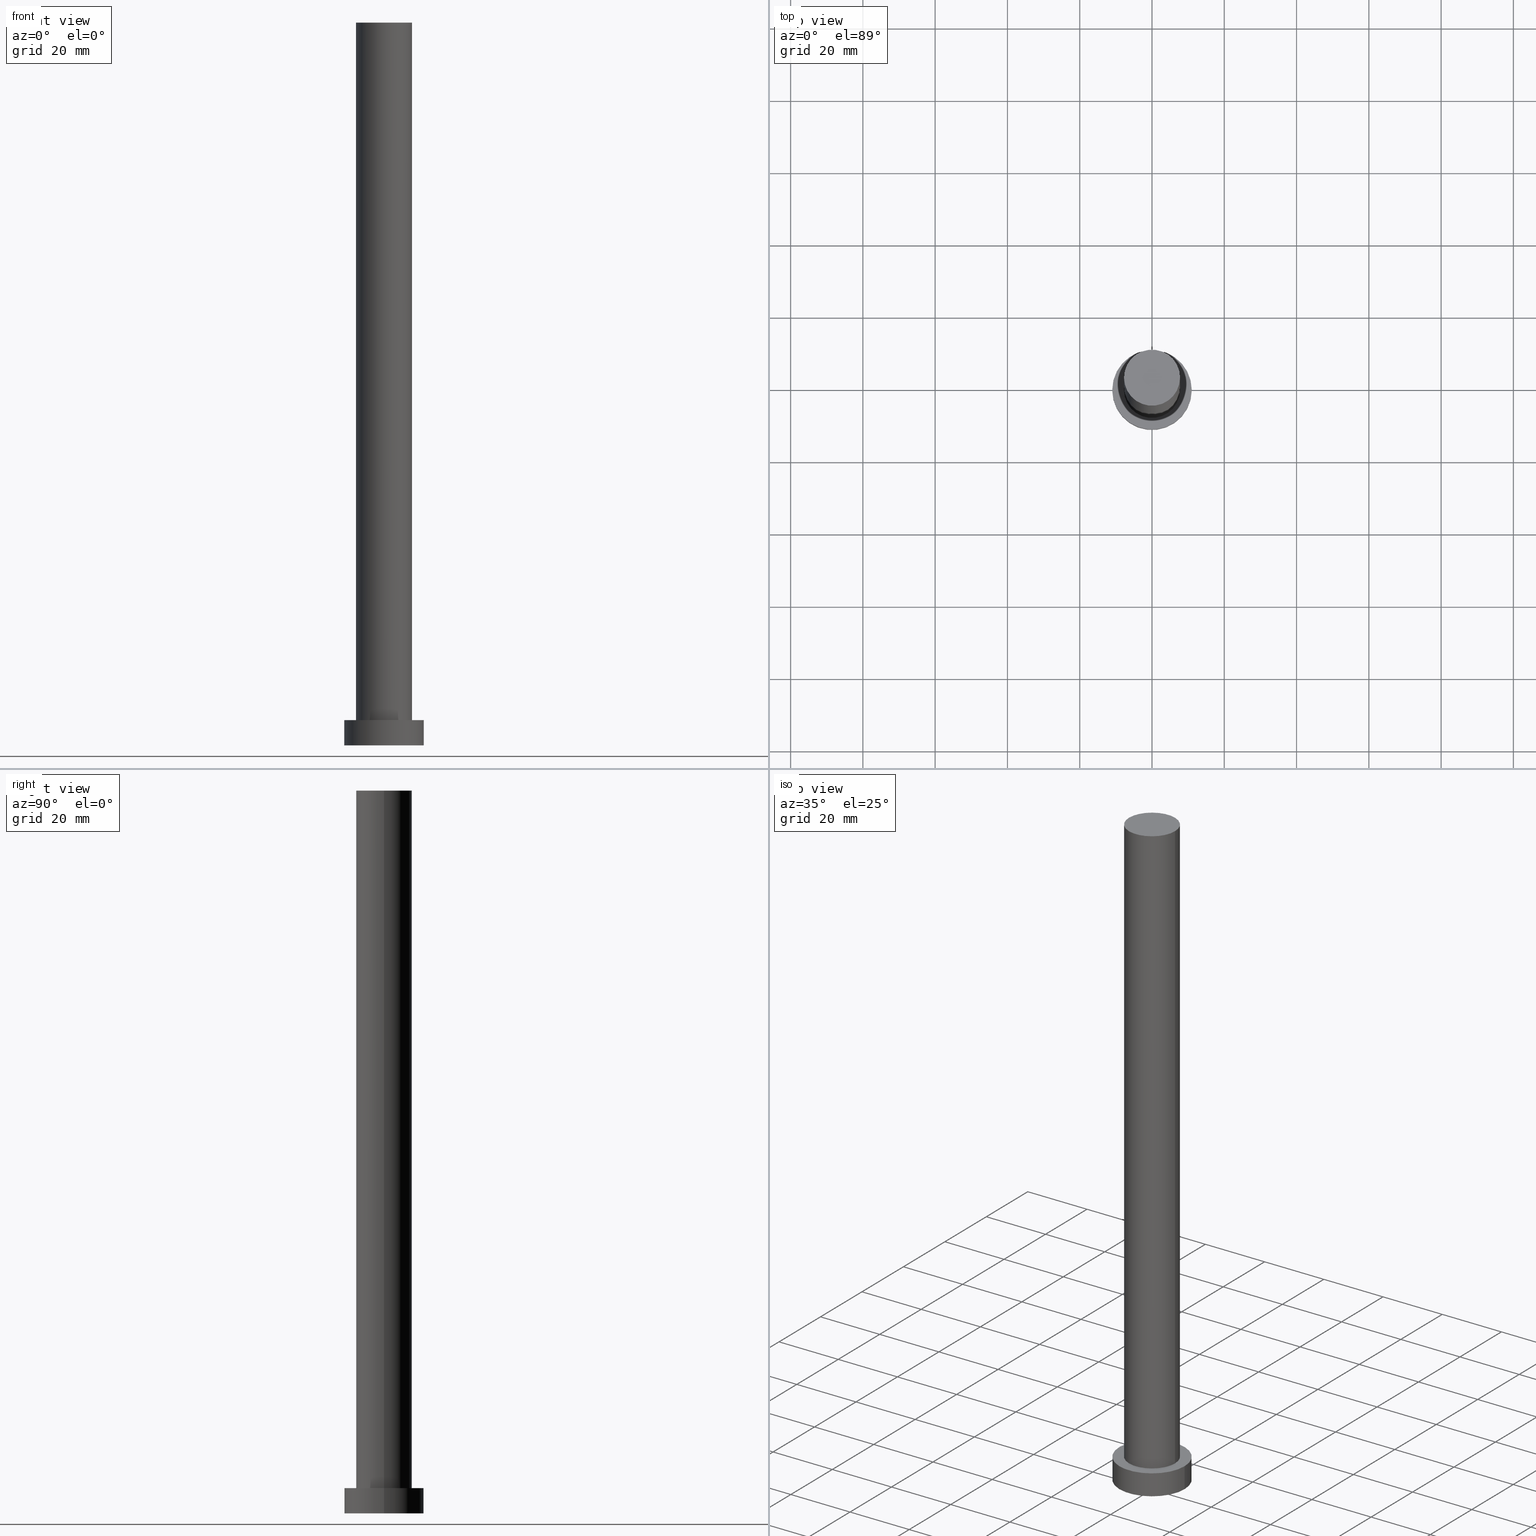
[diagram: canonical four-view strip — front | top / right | iso, engineering-drawing reading convention]
A machine part, canonical four-view strip (front | top / right | iso — engineering-drawing reading convention). The complete STEP part file that produces these views, byte-faithful:
ISO-10303-21;
HEADER;
FILE_DESCRIPTION (( 'STEP AP203' ),
    '1' );
FILE_NAME ('f369.STEP',
    '2023-02-13T09:48:39',
    ( '' ),
    ( '' ),
    'SwSTEP 2.0',
    'SolidWorks 2019',
    '' );
FILE_SCHEMA (( 'CONFIG_CONTROL_DESIGN' ));
ENDSEC;

DATA;
#1 = DIRECTION ( 'NONE',  ( 0.000000000000000000, 0.000000000000000000, 1.000000000000000000 ) ) ;
#2 = LOCAL_TIME ( 10, 48, 39.00000000000000000, #69 ) ;
#3 = CLOSED_SHELL ( 'NONE', ( #29, #109, #241, #80, #50, #167, #104 ) ) ;
#4 = PERSON_AND_ORGANIZATION ( #200, #180 ) ;
#5 = APPROVAL_ROLE ( '' ) ;
#6 = ORIENTED_EDGE ( 'NONE', *, *, #248, .T. ) ;
#7 = CALENDAR_DATE ( 2023, 13, 2 ) ;
#8 = PERSON_AND_ORGANIZATION ( #200, #180 ) ;
#9 = APPROVAL ( #226, 'NEUR�EN�' ) ;
#10 = COORDINATED_UNIVERSAL_TIME_OFFSET ( 1, 0, .AHEAD. ) ;
#11 = ORIENTED_EDGE ( 'NONE', *, *, #206, .T. ) ;
#12 = CIRCLE ( 'NONE', #111, 11.00000000000000000 ) ;
#13 = LINE ( 'NONE', #198, #194 ) ;
#14 = CARTESIAN_POINT ( 'NONE',  ( -7.750000000000000000, 0.000000000000000000, 7.000000000000000000 ) ) ;
#15 = ORIENTED_EDGE ( 'NONE', *, *, #24, .F. ) ;
#16 = PLANE ( 'NONE',  #218 ) ;
#17 = FACE_OUTER_BOUND ( 'NONE', #246, .T. ) ;
#18 = CC_DESIGN_APPROVAL ( #9, ( #110 ) ) ;
#19 = APPLICATION_PROTOCOL_DEFINITION ( 'international standard', 'config_control_design', 1994, #135 ) ;
#20 = CC_DESIGN_APPROVAL ( #62, ( #140 ) ) ;
#21 = CC_DESIGN_PERSON_AND_ORGANIZATION_ASSIGNMENT ( #57, #124, ( #140 ) ) ;
#22 = ORIENTED_EDGE ( 'NONE', *, *, #45, .T. ) ;
#23 = COORDINATED_UNIVERSAL_TIME_OFFSET ( 1, 0, .AHEAD. ) ;
#24 = EDGE_CURVE ( 'NONE', #247, #178, #154, .T. ) ;
#25 = AXIS2_PLACEMENT_3D ( 'NONE', #255, #142, #221 ) ;
#26 = ORIENTED_EDGE ( 'NONE', *, *, #117, .F. ) ;
#27 = MANIFOLD_SOLID_BREP ( 'P�idat vysunut�m3', #3 ) ;
#28 = DIRECTION ( 'NONE',  ( 1.000000000000000000, 0.000000000000000000, 0.000000000000000000 ) ) ;
#29 = ADVANCED_FACE ( 'NONE', ( #77 ), #253, .T. ) ;
#30 = DIRECTION ( 'NONE',  ( 1.000000000000000000, 0.000000000000000000, 0.000000000000000000 ) ) ;
#31 = EDGE_LOOP ( 'NONE', ( #134, #210, #114, #95 ) ) ;
#32 = CARTESIAN_POINT ( 'NONE',  ( 0.000000000000000000, 0.000000000000000000, 7.000000000000000000 ) ) ;
#33 = CIRCLE ( 'NONE', #237, 7.750000000000000000 ) ;
#34 = CARTESIAN_POINT ( 'NONE',  ( 11.00000000000000000, 1.347111479062088405E-15, 7.000000000000000000 ) ) ;
#35 = DIRECTION ( 'NONE',  ( 0.000000000000000000, 0.000000000000000000, 1.000000000000000000 ) ) ;
#36 = DESIGN_CONTEXT ( 'detailed design', #81, 'design' ) ;
#37 = CARTESIAN_POINT ( 'NONE',  ( 0.000000000000000000, 0.000000000000000000, 7.000000000000000000 ) ) ;
#38 = CARTESIAN_POINT ( 'NONE',  ( 7.750000000000000000, 9.491012693391987787E-16, 200.0000000000000000 ) ) ;
#39 = ADVANCED_BREP_SHAPE_REPRESENTATION ( 'f369', ( #27, #240 ), #217 ) ;
#40 = DIRECTION ( 'NONE',  ( 1.000000000000000000, 0.000000000000000000, 0.000000000000000000 ) ) ;
#41 = CC_DESIGN_PERSON_AND_ORGANIZATION_ASSIGNMENT ( #4, #64, ( #110 ) ) ;
#42 = CC_DESIGN_SECURITY_CLASSIFICATION ( #232, ( #110 ) ) ;
#43 = AXIS2_PLACEMENT_3D ( 'NONE', #97, #251, #75 ) ;
#44 = ORIENTED_EDGE ( 'NONE', *, *, #67, .F. ) ;
#45 = EDGE_CURVE ( 'NONE', #227, #157, #13, .T. ) ;
#46 = APPROVAL_ROLE ( '' ) ;
#47 = CIRCLE ( 'NONE', #90, 11.00000000000000000 ) ;
#48 = APPROVAL_DATE_TIME ( #168, #211 ) ;
#49 = ORIENTED_EDGE ( 'NONE', *, *, #248, .F. ) ;
#50 = ADVANCED_FACE ( 'NONE', ( #137 ), #16, .F. ) ;
#51 = CARTESIAN_POINT ( 'NONE',  ( 0.000000000000000000, 0.000000000000000000, 200.0000000000000000 ) ) ;
#52 = PLANE ( 'NONE',  #60 ) ;
#53 = VERTEX_POINT ( 'NONE', #228 ) ;
#54 = EDGE_CURVE ( 'NONE', #53, #243, #231, .T. ) ;
#55 = DIRECTION ( 'NONE',  ( 1.000000000000000000, 0.000000000000000000, -0.000000000000000000 ) ) ;
#56 = CARTESIAN_POINT ( 'NONE',  ( 0.000000000000000000, 0.000000000000000000, 7.000000000000000000 ) ) ;
#57 = PERSON_AND_ORGANIZATION ( #200, #180 ) ;
#58 =( NAMED_UNIT ( * ) PLANE_ANGLE_UNIT ( ) SI_UNIT ( $, .RADIAN. ) );
#59 = AXIS2_PLACEMENT_3D ( 'NONE', #202, #35, #127 ) ;
#60 = AXIS2_PLACEMENT_3D ( 'NONE', #32, #213, #55 ) ;
#61 = DIRECTION ( 'NONE',  ( 0.000000000000000000, 0.000000000000000000, 1.000000000000000000 ) ) ;
#62 = APPROVAL ( #126, 'NEUR�EN�' ) ;
#63 = CARTESIAN_POINT ( 'NONE',  ( -7.750000000000000000, 0.000000000000000000, 200.0000000000000000 ) ) ;
#64 = PERSON_AND_ORGANIZATION_ROLE ( 'design_supplier' ) ;
#65 = LOCAL_TIME ( 10, 48, 39.00000000000000000, #146 ) ;
#66 = DATE_TIME_ROLE ( 'creation_date' ) ;
#67 = EDGE_CURVE ( 'NONE', #53, #247, #12, .T. ) ;
#68 = ORIENTED_EDGE ( 'NONE', *, *, #86, .F. ) ;
#69 = COORDINATED_UNIVERSAL_TIME_OFFSET ( 1, 0, .AHEAD. ) ;
#70 = ORIENTED_EDGE ( 'NONE', *, *, #225, .T. ) ;
#71 = AXIS2_PLACEMENT_3D ( 'NONE', #101, #125, #205 ) ;
#72 = CIRCLE ( 'NONE', #94, 7.750000000000000000 ) ;
#73 = ORIENTED_EDGE ( 'NONE', *, *, #206, .F. ) ;
#74 = CARTESIAN_POINT ( 'NONE',  ( 0.000000000000000000, 0.000000000000000000, 200.0000000000000000 ) ) ;
#75 = DIRECTION ( 'NONE',  ( 1.000000000000000000, 0.000000000000000000, 0.000000000000000000 ) ) ;
#76 = AXIS2_PLACEMENT_3D ( 'NONE', #74, #122, #229 ) ;
#77 = FACE_OUTER_BOUND ( 'NONE', #208, .T. ) ;
#78 = DIRECTION ( 'NONE',  ( 1.000000000000000000, 0.000000000000000000, -0.000000000000000000 ) ) ;
#79 = APPROVAL_DATE_TIME ( #144, #62 ) ;
#80 = ADVANCED_FACE ( 'NONE', ( #138, #214 ), #52, .T. ) ;
#81 = APPLICATION_CONTEXT ( 'configuration controlled 3d designs of mechanical parts and assemblies' ) ;
#82 = DIRECTION ( 'NONE',  ( 0.000000000000000000, 0.000000000000000000, 1.000000000000000000 ) ) ;
#83 = CARTESIAN_POINT ( 'NONE',  ( 11.00000000000000000, 1.347111479062088405E-15, 7.000000000000000000 ) ) ;
#84 = LOCAL_TIME ( 10, 48, 39.00000000000000000, #166 ) ;
#85 = PERSON_AND_ORGANIZATION ( #200, #180 ) ;
#86 = EDGE_CURVE ( 'NONE', #175, #227, #33, .T. ) ;
#87 = FACE_OUTER_BOUND ( 'NONE', #119, .T. ) ;
#88 = DATE_TIME_ROLE ( 'classification_date' ) ;
#89 = AXIS2_PLACEMENT_3D ( 'NONE', #37, #1, #219 ) ;
#90 = AXIS2_PLACEMENT_3D ( 'NONE', #162, #61, #235 ) ;
#91 = ORIENTED_EDGE ( 'NONE', *, *, #67, .T. ) ;
#92 = PERSON_AND_ORGANIZATION ( #200, #180 ) ;
#93 = DATE_AND_TIME ( #112, #223 ) ;
#94 = AXIS2_PLACEMENT_3D ( 'NONE', #56, #184, #28 ) ;
#95 = ORIENTED_EDGE ( 'NONE', *, *, #54, .F. ) ;
#96 = DIRECTION ( 'NONE',  ( -0.000000000000000000, -0.000000000000000000, -1.000000000000000000 ) ) ;
#97 = CARTESIAN_POINT ( 'NONE',  ( 0.000000000000000000, 0.000000000000000000, 0.000000000000000000 ) ) ;
#98 = CARTESIAN_POINT ( 'NONE',  ( 0.000000000000000000, 0.000000000000000000, 0.000000000000000000 ) ) ;
#99 = PLANE ( 'NONE',  #189 ) ;
#100 = DIRECTION ( 'NONE',  ( -1.000000000000000000, 0.000000000000000000, 0.000000000000000000 ) ) ;
#101 = CARTESIAN_POINT ( 'NONE',  ( 0.000000000000000000, 0.000000000000000000, 7.000000000000000000 ) ) ;
#102 = CYLINDRICAL_SURFACE ( 'NONE', #25, 7.750000000000000000 ) ;
#103 =( NAMED_UNIT ( * ) SI_UNIT ( $, .STERADIAN. ) SOLID_ANGLE_UNIT ( ) );
#104 = ADVANCED_FACE ( 'NONE', ( #17 ), #99, .T. ) ;
#105 = CIRCLE ( 'NONE', #245, 7.750000000000000000 ) ;
#106 = APPROVAL_ROLE ( '' ) ;
#107 = PERSON_AND_ORGANIZATION_ROLE ( 'design_owner' ) ;
#108 = DATE_AND_TIME ( #7, #65 ) ;
#109 = ADVANCED_FACE ( 'NONE', ( #159 ), #118, .T. ) ;
#110 = PRODUCT_DEFINITION_FORMATION_WITH_SPECIFIED_SOURCE ( 'LIBOVOLN�', '', #177, .NOT_KNOWN. ) ;
#111 = AXIS2_PLACEMENT_3D ( 'NONE', #199, #249, #179 ) ;
#112 = CALENDAR_DATE ( 2023, 13, 2 ) ;
#113 = CC_DESIGN_PERSON_AND_ORGANIZATION_ASSIGNMENT ( #174, #224, ( #232 ) ) ;
#114 = ORIENTED_EDGE ( 'NONE', *, *, #163, .T. ) ;
#115 = APPROVAL_STATUS ( 'not_yet_approved' ) ;
#116 = LINE ( 'NONE', #196, #128 ) ;
#117 = EDGE_CURVE ( 'NONE', #157, #173, #72, .T. ) ;
#118 = CYLINDRICAL_SURFACE ( 'NONE', #207, 11.00000000000000000 ) ;
#119 = EDGE_LOOP ( 'NONE', ( #121, #49, #22, #252 ) ) ;
#120 = LOCAL_TIME ( 10, 48, 39.00000000000000000, #23 ) ;
#121 = ORIENTED_EDGE ( 'NONE', *, *, #147, .F. ) ;
#122 = DIRECTION ( 'NONE',  ( -0.000000000000000000, -0.000000000000000000, -1.000000000000000000 ) ) ;
#123 = CYLINDRICAL_SURFACE ( 'NONE', #71, 11.00000000000000000 ) ;
#124 = PERSON_AND_ORGANIZATION_ROLE ( 'creator' ) ;
#125 = DIRECTION ( 'NONE',  ( -0.000000000000000000, -0.000000000000000000, -1.000000000000000000 ) ) ;
#126 = APPROVAL_STATUS ( 'not_yet_approved' ) ;
#127 = DIRECTION ( 'NONE',  ( 1.000000000000000000, 0.000000000000000000, 0.000000000000000000 ) ) ;
#128 = VECTOR ( 'NONE', #197, 1000.000000000000000 ) ;
#129 = ORIENTED_EDGE ( 'NONE', *, *, #86, .T. ) ;
#130 = SECURITY_CLASSIFICATION_LEVEL ( 'unclassified' ) ;
#131 = EDGE_LOOP ( 'NONE', ( #195, #216 ) ) ;
#132 = VECTOR ( 'NONE', #96, 1000.000000000000000 ) ;
#133 = SHAPE_DEFINITION_REPRESENTATION ( #152, #39 ) ;
#134 = ORIENTED_EDGE ( 'NONE', *, *, #244, .F. ) ;
#135 = APPLICATION_CONTEXT ( 'configuration controlled 3d designs of mechanical parts and assemblies' ) ;
#136 = DIRECTION ( 'NONE',  ( -0.000000000000000000, -0.000000000000000000, -1.000000000000000000 ) ) ;
#137 = FACE_OUTER_BOUND ( 'NONE', #131, .T. ) ;
#138 = FACE_BOUND ( 'NONE', #176, .T. ) ;
#139 = EDGE_LOOP ( 'NONE', ( #15, #44, #230, #70 ) ) ;
#140 = PRODUCT_DEFINITION ( 'NEZN�M�', '', #110, #36 ) ;
#141 = EDGE_LOOP ( 'NONE', ( #91, #242 ) ) ;
#142 = DIRECTION ( 'NONE',  ( -0.000000000000000000, -0.000000000000000000, -1.000000000000000000 ) ) ;
#143 = APPLICATION_PROTOCOL_DEFINITION ( 'international standard', 'config_control_design', 1994, #81 ) ;
#144 = DATE_AND_TIME ( #239, #84 ) ;
#145 = CIRCLE ( 'NONE', #89, 7.750000000000000000 ) ;
#146 = COORDINATED_UNIVERSAL_TIME_OFFSET ( 1, 0, .AHEAD. ) ;
#147 = EDGE_CURVE ( 'NONE', #175, #173, #116, .T. ) ;
#148 = APPROVAL_DATE_TIME ( #93, #9 ) ;
#149 = CC_DESIGN_APPROVAL ( #211, ( #232 ) ) ;
#150 = CARTESIAN_POINT ( 'NONE',  ( -11.00000000000000000, 0.000000000000000000, 7.000000000000000000 ) ) ;
#151 = CIRCLE ( 'NONE', #59, 11.00000000000000000 ) ;
#152 = PRODUCT_DEFINITION_SHAPE ( 'NONE', 'NONE',  #140 ) ;
#153 = CC_DESIGN_DATE_AND_TIME_ASSIGNMENT ( #108, #88, ( #232 ) ) ;
#154 = LINE ( 'NONE', #34, #155 ) ;
#155 = VECTOR ( 'NONE', #254, 1000.000000000000000 ) ;
#156 = CARTESIAN_POINT ( 'NONE',  ( 0.000000000000000000, 0.000000000000000000, 200.0000000000000000 ) ) ;
#157 = VERTEX_POINT ( 'NONE', #14 ) ;
#158 = CC_DESIGN_PERSON_AND_ORGANIZATION_ASSIGNMENT ( #170, #209, ( #110 ) ) ;
#159 = FACE_OUTER_BOUND ( 'NONE', #31, .T. ) ;
#160 = APPROVAL_PERSON_ORGANIZATION ( #220, #62, #106 ) ;
#161 = CIRCLE ( 'NONE', #43, 11.00000000000000000 ) ;
#162 = CARTESIAN_POINT ( 'NONE',  ( 0.000000000000000000, 0.000000000000000000, 7.000000000000000000 ) ) ;
#163 = EDGE_CURVE ( 'NONE', #178, #243, #161, .T. ) ;
#164 = CARTESIAN_POINT ( 'NONE',  ( 11.00000000000000000, 1.347111479062088405E-15, 0.000000000000000000 ) ) ;
#165 = CARTESIAN_POINT ( 'NONE',  ( 0.000000000000000000, 0.000000000000000000, 0.000000000000000000 ) ) ;
#166 = COORDINATED_UNIVERSAL_TIME_OFFSET ( 1, 0, .AHEAD. ) ;
#167 = ADVANCED_FACE ( 'NONE', ( #87 ), #102, .T. ) ;
#168 = DATE_AND_TIME ( #172, #2 ) ;
#169 = APPROVAL_PERSON_ORGANIZATION ( #92, #211, #5 ) ;
#170 = PERSON_AND_ORGANIZATION ( #200, #180 ) ;
#171 = UNCERTAINTY_MEASURE_WITH_UNIT (LENGTH_MEASURE( 1.000000000000000082E-05 ), #236, 'distance_accuracy_value', 'NONE');
#172 = CALENDAR_DATE ( 2023, 13, 2 ) ;
#173 = VERTEX_POINT ( 'NONE', #186 ) ;
#174 = PERSON_AND_ORGANIZATION ( #200, #180 ) ;
#175 = VERTEX_POINT ( 'NONE', #38 ) ;
#176 = EDGE_LOOP ( 'NONE', ( #26, #73 ) ) ;
#177 = PRODUCT ( 'f369', 'f369', '', ( #185 ) ) ;
#178 = VERTEX_POINT ( 'NONE', #164 ) ;
#179 = DIRECTION ( 'NONE',  ( 1.000000000000000000, 0.000000000000000000, 0.000000000000000000 ) ) ;
#180 = ORGANIZATION ( 'NEUR�EN�', 'NEUR�EN�', '' ) ;
#181 = DIRECTION ( 'NONE',  ( 1.000000000000000000, 0.000000000000000000, -0.000000000000000000 ) ) ;
#182 = CC_DESIGN_PERSON_AND_ORGANIZATION_ASSIGNMENT ( #85, #107, ( #177 ) ) ;
#183 = DIRECTION ( 'NONE',  ( 0.000000000000000000, 0.000000000000000000, 1.000000000000000000 ) ) ;
#184 = DIRECTION ( 'NONE',  ( 0.000000000000000000, 0.000000000000000000, 1.000000000000000000 ) ) ;
#185 = MECHANICAL_CONTEXT ( 'NONE', #135, 'mechanical' ) ;
#186 = CARTESIAN_POINT ( 'NONE',  ( 7.750000000000000000, 9.491012693391987787E-16, 7.000000000000000000 ) ) ;
#187 = FACE_OUTER_BOUND ( 'NONE', #139, .T. ) ;
#188 = CARTESIAN_POINT ( 'NONE',  ( 0.000000000000000000, 0.000000000000000000, 200.0000000000000000 ) ) ;
#189 = AXIS2_PLACEMENT_3D ( 'NONE', #156, #183, #78 ) ;
#190 = DIRECTION ( 'NONE',  ( 1.000000000000000000, 0.000000000000000000, 0.000000000000000000 ) ) ;
#191 = DATE_AND_TIME ( #193, #120 ) ;
#192 = ORIENTED_EDGE ( 'NONE', *, *, #45, .F. ) ;
#193 = CALENDAR_DATE ( 2023, 13, 2 ) ;
#194 = VECTOR ( 'NONE', #215, 1000.000000000000000 ) ;
#195 = ORIENTED_EDGE ( 'NONE', *, *, #225, .F. ) ;
#196 = CARTESIAN_POINT ( 'NONE',  ( 7.750000000000000000, 9.491012693391987787E-16, 200.0000000000000000 ) ) ;
#197 = DIRECTION ( 'NONE',  ( -0.000000000000000000, -0.000000000000000000, -1.000000000000000000 ) ) ;
#198 = CARTESIAN_POINT ( 'NONE',  ( -7.750000000000000000, 0.000000000000000000, 200.0000000000000000 ) ) ;
#199 = CARTESIAN_POINT ( 'NONE',  ( 0.000000000000000000, 0.000000000000000000, 7.000000000000000000 ) ) ;
#200 = PERSON ( 'NEUR�EN�', 'NEUR�EN�', 'NEUR�EN�', ('NEUR�EN�'), ('NEUR�EN�'), ('NEUR�EN�') ) ;
#201 = DIRECTION ( 'NONE',  ( 0.000000000000000000, 0.000000000000000000, 1.000000000000000000 ) ) ;
#202 = CARTESIAN_POINT ( 'NONE',  ( 0.000000000000000000, 0.000000000000000000, 0.000000000000000000 ) ) ;
#203 = CC_DESIGN_DATE_AND_TIME_ASSIGNMENT ( #191, #66, ( #140 ) ) ;
#204 = CARTESIAN_POINT ( 'NONE',  ( -11.00000000000000000, 0.000000000000000000, 0.000000000000000000 ) ) ;
#205 = DIRECTION ( 'NONE',  ( -1.000000000000000000, 0.000000000000000000, 0.000000000000000000 ) ) ;
#206 = EDGE_CURVE ( 'NONE', #173, #157, #145, .T. ) ;
#207 = AXIS2_PLACEMENT_3D ( 'NONE', #233, #136, #100 ) ;
#208 = EDGE_LOOP ( 'NONE', ( #68, #222, #11, #192 ) ) ;
#209 = PERSON_AND_ORGANIZATION_ROLE ( 'creator' ) ;
#210 = ORIENTED_EDGE ( 'NONE', *, *, #24, .T. ) ;
#211 = APPROVAL ( #115, 'NEUR�EN�' ) ;
#212 = DIRECTION ( 'NONE',  ( 0.000000000000000000, 0.000000000000000000, 1.000000000000000000 ) ) ;
#213 = DIRECTION ( 'NONE',  ( 0.000000000000000000, 0.000000000000000000, 1.000000000000000000 ) ) ;
#214 = FACE_OUTER_BOUND ( 'NONE', #141, .T. ) ;
#215 = DIRECTION ( 'NONE',  ( -0.000000000000000000, -0.000000000000000000, -1.000000000000000000 ) ) ;
#216 = ORIENTED_EDGE ( 'NONE', *, *, #163, .F. ) ;
#217 =( GEOMETRIC_REPRESENTATION_CONTEXT ( 3 ) GLOBAL_UNCERTAINTY_ASSIGNED_CONTEXT ( ( #171 ) ) GLOBAL_UNIT_ASSIGNED_CONTEXT ( ( #236, #58, #103 ) ) REPRESENTATION_CONTEXT ( 'NONE', 'WORKASPACE' ) );
#218 = AXIS2_PLACEMENT_3D ( 'NONE', #98, #212, #181 ) ;
#219 = DIRECTION ( 'NONE',  ( 1.000000000000000000, 0.000000000000000000, 0.000000000000000000 ) ) ;
#220 = PERSON_AND_ORGANIZATION ( #200, #180 ) ;
#221 = DIRECTION ( 'NONE',  ( -1.000000000000000000, 0.000000000000000000, 0.000000000000000000 ) ) ;
#222 = ORIENTED_EDGE ( 'NONE', *, *, #147, .T. ) ;
#223 = LOCAL_TIME ( 10, 48, 39.00000000000000000, #10 ) ;
#224 = PERSON_AND_ORGANIZATION_ROLE ( 'classification_officer' ) ;
#225 = EDGE_CURVE ( 'NONE', #243, #178, #151, .T. ) ;
#226 = APPROVAL_STATUS ( 'not_yet_approved' ) ;
#227 = VERTEX_POINT ( 'NONE', #63 ) ;
#228 = CARTESIAN_POINT ( 'NONE',  ( -11.00000000000000000, 0.000000000000000000, 7.000000000000000000 ) ) ;
#229 = DIRECTION ( 'NONE',  ( -1.000000000000000000, 0.000000000000000000, 0.000000000000000000 ) ) ;
#230 = ORIENTED_EDGE ( 'NONE', *, *, #54, .T. ) ;
#231 = LINE ( 'NONE', #150, #132 ) ;
#232 = SECURITY_CLASSIFICATION ( '', '', #130 ) ;
#233 = CARTESIAN_POINT ( 'NONE',  ( 0.000000000000000000, 0.000000000000000000, 7.000000000000000000 ) ) ;
#234 = PRODUCT_RELATED_PRODUCT_CATEGORY ( 'detail', '', ( #177 ) ) ;
#235 = DIRECTION ( 'NONE',  ( 1.000000000000000000, 0.000000000000000000, 0.000000000000000000 ) ) ;
#236 =( LENGTH_UNIT ( ) NAMED_UNIT ( * ) SI_UNIT ( .MILLI., .METRE. ) );
#237 = AXIS2_PLACEMENT_3D ( 'NONE', #51, #201, #30 ) ;
#238 = DIRECTION ( 'NONE',  ( 0.000000000000000000, 0.000000000000000000, 1.000000000000000000 ) ) ;
#239 = CALENDAR_DATE ( 2023, 13, 2 ) ;
#240 = AXIS2_PLACEMENT_3D ( 'NONE', #165, #238, #40 ) ;
#241 = ADVANCED_FACE ( 'NONE', ( #187 ), #123, .T. ) ;
#242 = ORIENTED_EDGE ( 'NONE', *, *, #244, .T. ) ;
#243 = VERTEX_POINT ( 'NONE', #204 ) ;
#244 = EDGE_CURVE ( 'NONE', #247, #53, #47, .T. ) ;
#245 = AXIS2_PLACEMENT_3D ( 'NONE', #188, #82, #190 ) ;
#246 = EDGE_LOOP ( 'NONE', ( #6, #129 ) ) ;
#247 = VERTEX_POINT ( 'NONE', #83 ) ;
#248 = EDGE_CURVE ( 'NONE', #227, #175, #105, .T. ) ;
#249 = DIRECTION ( 'NONE',  ( 0.000000000000000000, 0.000000000000000000, 1.000000000000000000 ) ) ;
#250 = APPROVAL_PERSON_ORGANIZATION ( #8, #9, #46 ) ;
#251 = DIRECTION ( 'NONE',  ( 0.000000000000000000, 0.000000000000000000, 1.000000000000000000 ) ) ;
#252 = ORIENTED_EDGE ( 'NONE', *, *, #117, .T. ) ;
#253 = CYLINDRICAL_SURFACE ( 'NONE', #76, 7.750000000000000000 ) ;
#254 = DIRECTION ( 'NONE',  ( -0.000000000000000000, -0.000000000000000000, -1.000000000000000000 ) ) ;
#255 = CARTESIAN_POINT ( 'NONE',  ( 0.000000000000000000, 0.000000000000000000, 200.0000000000000000 ) ) ;
ENDSEC;
END-ISO-10303-21;
